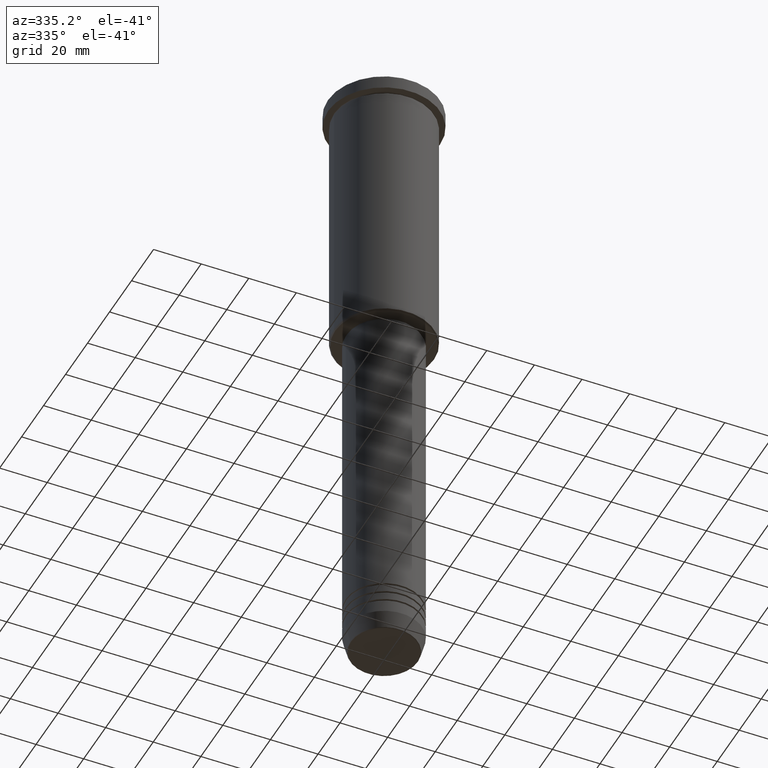
[diagram: clean part render]
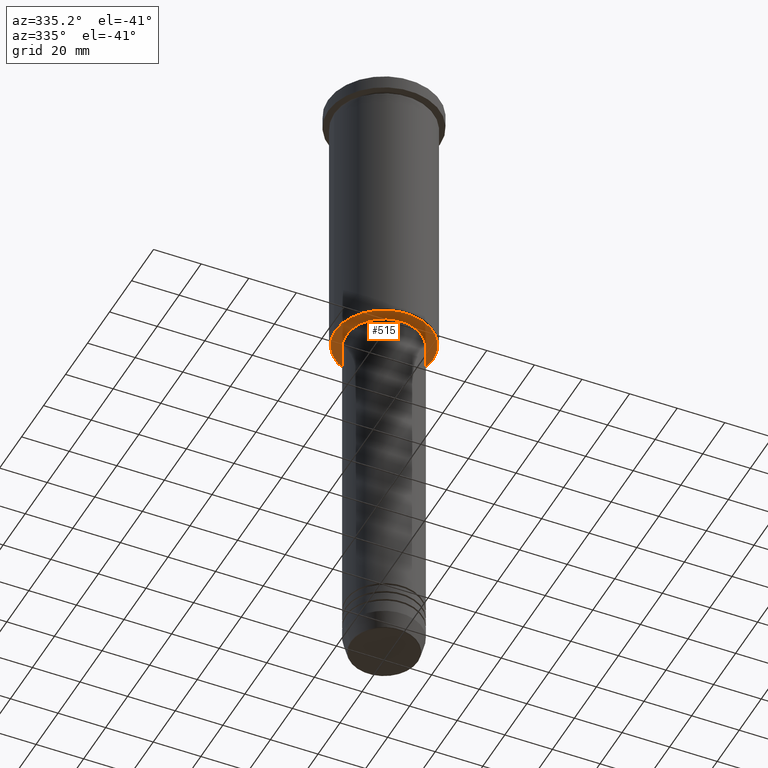
[diagram: same view with one face highlighted and labeled with its STEP entity id]
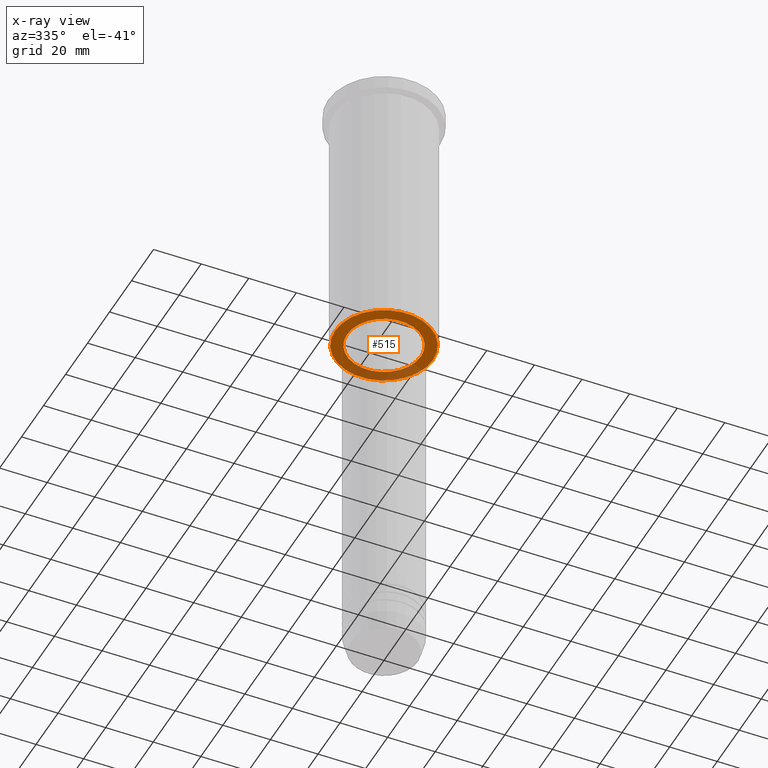
[diagram: x-ray of the same camera — body ghosted, the highlighted face saturated]
A machine part, auxiliary view. The second image highlights one B-rep face of the part: STEP entity #515.
The next image is the same camera in x-ray: the body ghosted, the highlighted face saturated — about 25% of this face is hidden behind the body in this view.
In plain terms, the highlighted planar face has unit normal (0, 0, -1).
Its self-contained STEP definition (entity closure, byte-faithful):
#30 = EDGE_CURVE ( 'NONE', #516, #310, #977, .T. ) ;
#67 = EDGE_LOOP ( 'NONE', ( #1066, #618 ) ) ;
#95 = AXIS2_PLACEMENT_3D ( 'NONE', #375, #1117, #756 ) ;
#169 = PLANE ( 'NONE',  #839 ) ;
#179 = CARTESIAN_POINT ( 'NONE',  ( 15.50000000000000000, 0.000000000000000000, -116.0000000000000142 ) ) ;
#190 = CARTESIAN_POINT ( 'NONE',  ( 0.000000000000000000, 0.000000000000000000, -116.0000000000000142 ) ) ;
#193 = EDGE_CURVE ( 'NONE', #310, #516, #258, .T. ) ;
#258 = CIRCLE ( 'NONE', #611, 15.50000000000000000 ) ;
#279 = VERTEX_POINT ( 'NONE', #1089 ) ;
#289 = DIRECTION ( 'NONE',  ( -1.000000000000000000, 0.000000000000000000, 0.000000000000000000 ) ) ;
#310 = VERTEX_POINT ( 'NONE', #585 ) ;
#375 = CARTESIAN_POINT ( 'NONE',  ( 0.000000000000000000, 0.000000000000000000, -116.0000000000000142 ) ) ;
#438 = DIRECTION ( 'NONE',  ( 1.000000000000000000, 0.000000000000000000, 0.000000000000000000 ) ) ;
#439 = CARTESIAN_POINT ( 'NONE',  ( 0.000000000000000000, 0.000000000000000000, -116.0000000000000142 ) ) ;
#443 = FACE_BOUND ( 'NONE', #67, .T. ) ;
#511 = CIRCLE ( 'NONE', #95, 20.49999999999996447 ) ;
#515 = ADVANCED_FACE ( 'NONE', ( #912, #443 ), #169, .T. ) ;
#516 = VERTEX_POINT ( 'NONE', #179 ) ;
#585 = CARTESIAN_POINT ( 'NONE',  ( -15.50000000000000000, 1.898202538678397557E-15, -116.0000000000000142 ) ) ;
#604 = DIRECTION ( 'NONE',  ( -0.000000000000000000, -0.000000000000000000, 1.000000000000000000 ) ) ;
#611 = AXIS2_PLACEMENT_3D ( 'NONE', #992, #604, #883 ) ;
#613 = AXIS2_PLACEMENT_3D ( 'NONE', #190, #1095, #438 ) ;
#618 = ORIENTED_EDGE ( 'NONE', *, *, #193, .T. ) ;
#680 = VERTEX_POINT ( 'NONE', #925 ) ;
#703 = ORIENTED_EDGE ( 'NONE', *, *, #1047, .T. ) ;
#734 = DIRECTION ( 'NONE',  ( -1.000000000000000000, 0.000000000000000000, -0.000000000000000000 ) ) ;
#741 = DIRECTION ( 'NONE',  ( 0.000000000000000000, 0.000000000000000000, -1.000000000000000000 ) ) ;
#756 = DIRECTION ( 'NONE',  ( -1.000000000000000000, 0.000000000000000000, 0.000000000000000000 ) ) ;
#776 = ORIENTED_EDGE ( 'NONE', *, *, #1056, .T. ) ;
#839 = AXIS2_PLACEMENT_3D ( 'NONE', #921, #885, #734 ) ;
#883 = DIRECTION ( 'NONE',  ( 1.000000000000000000, 0.000000000000000000, 0.000000000000000000 ) ) ;
#885 = DIRECTION ( 'NONE',  ( 0.000000000000000000, 0.000000000000000000, -1.000000000000000000 ) ) ;
#912 = FACE_OUTER_BOUND ( 'NONE', #996, .T. ) ;
#921 = CARTESIAN_POINT ( 'NONE',  ( 0.000000000000000000, 21.00000000000000000, -116.0000000000000142 ) ) ;
#925 = CARTESIAN_POINT ( 'NONE',  ( 20.49999999999996447, 0.000000000000000000, -116.0000000000000142 ) ) ;
#941 = CIRCLE ( 'NONE', #997, 20.49999999999996447 ) ;
#977 = CIRCLE ( 'NONE', #613, 15.50000000000000000 ) ;
#992 = CARTESIAN_POINT ( 'NONE',  ( 0.000000000000000000, 0.000000000000000000, -116.0000000000000142 ) ) ;
#996 = EDGE_LOOP ( 'NONE', ( #703, #776 ) ) ;
#997 = AXIS2_PLACEMENT_3D ( 'NONE', #439, #741, #289 ) ;
#1047 = EDGE_CURVE ( 'NONE', #680, #279, #941, .T. ) ;
#1056 = EDGE_CURVE ( 'NONE', #279, #680, #511, .T. ) ;
#1066 = ORIENTED_EDGE ( 'NONE', *, *, #30, .T. ) ;
#1089 = CARTESIAN_POINT ( 'NONE',  ( -20.49999999999996447, 2.541142108230755902E-15, -116.0000000000000142 ) ) ;
#1095 = DIRECTION ( 'NONE',  ( -0.000000000000000000, -0.000000000000000000, 1.000000000000000000 ) ) ;
#1117 = DIRECTION ( 'NONE',  ( 0.000000000000000000, 0.000000000000000000, -1.000000000000000000 ) ) ;